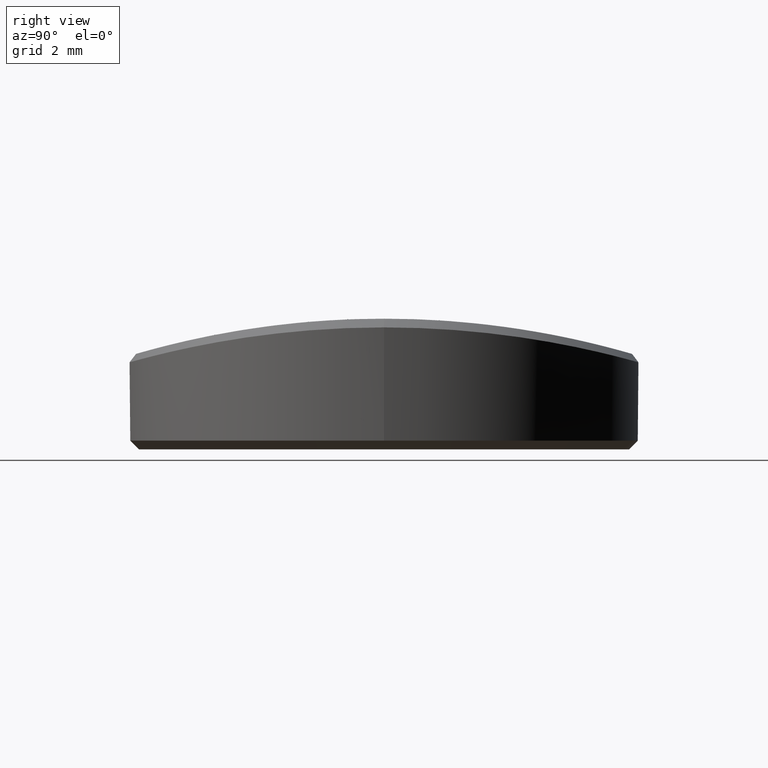
[diagram: clean part render]
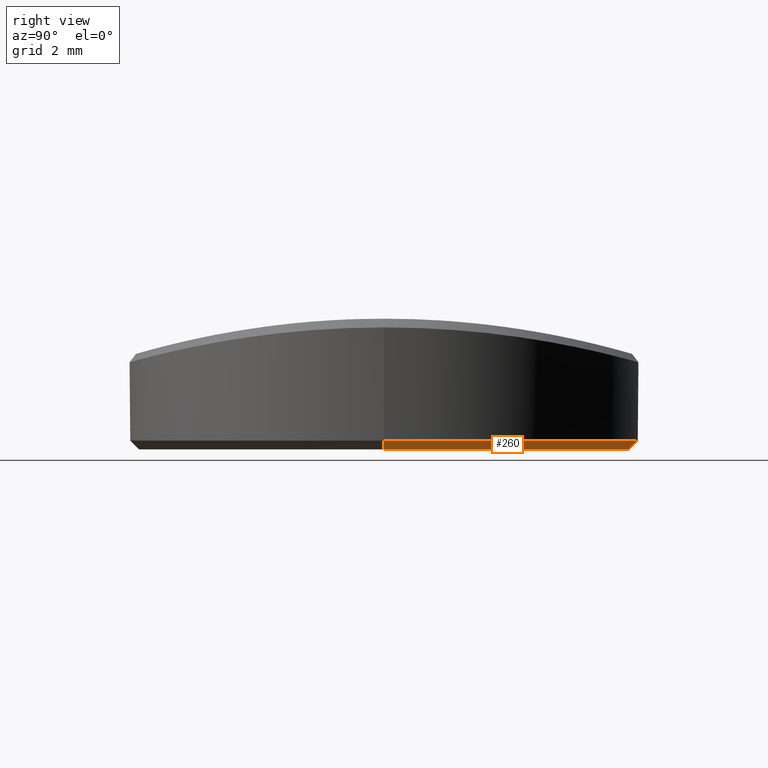
[diagram: same view with one face highlighted and labeled with its STEP entity id]
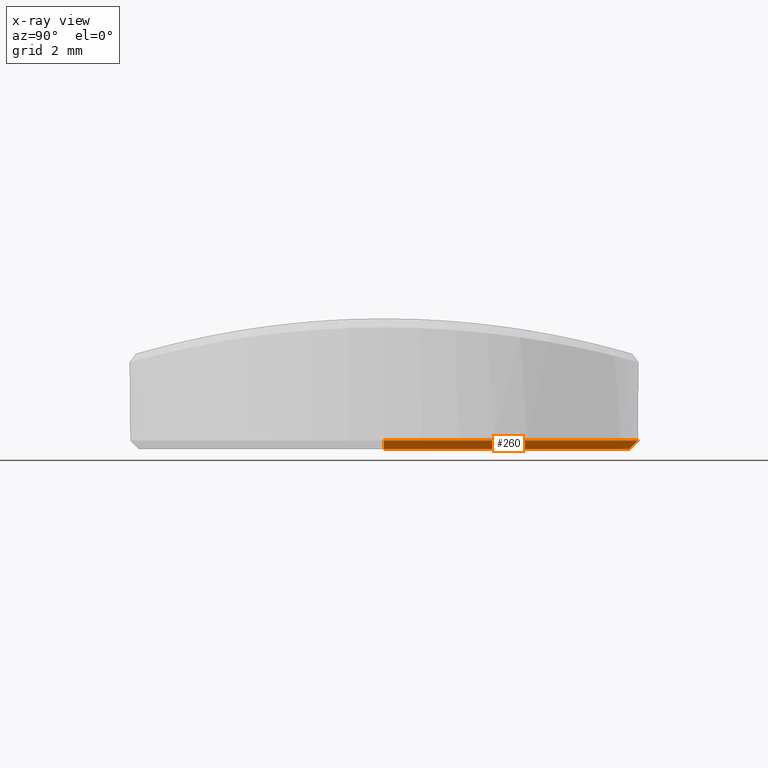
[diagram: x-ray of the same camera — body ghosted, the highlighted face saturated]
A machine part, right view. The second image highlights one B-rep face of the part: STEP entity #260.
The next image is the same camera in x-ray: the body ghosted, the highlighted face saturated — about 0% of this face is hidden behind the body in this view.
In plain terms, the highlighted conical surface has half-angle 45 deg.
Its self-contained STEP definition (entity closure, byte-faithful):
#1 = EDGE_LOOP ( 'NONE', ( #1028, #1593, #925, #1957 ) ) ;
#145 = CONICAL_SURFACE ( 'NONE', #1229, 5.849999999999999645, 0.7853981633974482790 ) ;
#207 = DIRECTION ( 'NONE',  ( 0.7071067811865474617, 0.000000000000000000, 0.7071067811865474617 ) ) ;
#226 = DIRECTION ( 'NONE',  ( -0.000000000000000000, -0.000000000000000000, -1.000000000000000000 ) ) ;
#260 = ADVANCED_FACE ( 'NONE', ( #1337 ), #145, .T. ) ;
#304 = DIRECTION ( 'NONE',  ( -0.000000000000000000, -0.000000000000000000, 1.000000000000000000 ) ) ;
#347 = AXIS2_PLACEMENT_3D ( 'NONE', #466, #1667, #1321 ) ;
#354 = CARTESIAN_POINT ( 'NONE',  ( 5.649999999999997691, 0.000000000000000000, 0.000000000000000000 ) ) ;
#409 = VERTEX_POINT ( 'NONE', #2068 ) ;
#466 = CARTESIAN_POINT ( 'NONE',  ( 0.000000000000000000, 0.000000000000000000, 0.2000000000000013989 ) ) ;
#644 = CARTESIAN_POINT ( 'NONE',  ( 0.000000000000000000, 0.000000000000000000, 0.2000000000000013989 ) ) ;
#894 = CARTESIAN_POINT ( 'NONE',  ( 5.849999999999999645, 0.000000000000000000, 0.2000000000000013989 ) ) ;
#913 = VERTEX_POINT ( 'NONE', #354 ) ;
#925 = ORIENTED_EDGE ( 'NONE', *, *, #2139, .F. ) ;
#963 = EDGE_CURVE ( 'NONE', #1730, #913, #1948, .T. ) ;
#1022 = DIRECTION ( 'NONE',  ( 1.000000000000000000, 0.000000000000000000, 0.000000000000000000 ) ) ;
#1028 = ORIENTED_EDGE ( 'NONE', *, *, #963, .F. ) ;
#1038 = CARTESIAN_POINT ( 'NONE',  ( 0.000000000000000000, 0.000000000000000000, 0.000000000000000000 ) ) ;
#1229 = AXIS2_PLACEMENT_3D ( 'NONE', #644, #304, #1022 ) ;
#1321 = DIRECTION ( 'NONE',  ( 1.000000000000000000, 0.000000000000000000, 0.000000000000000000 ) ) ;
#1329 = CIRCLE ( 'NONE', #347, 5.849999999999999645 ) ;
#1337 = FACE_OUTER_BOUND ( 'NONE', #1, .T. ) ;
#1424 = CARTESIAN_POINT ( 'NONE',  ( -5.649999999999997691, 7.041719095097278907E-16, 0.000000000000000000 ) ) ;
#1470 = EDGE_CURVE ( 'NONE', #1730, #409, #2193, .T. ) ;
#1568 = EDGE_CURVE ( 'NONE', #913, #1902, #1723, .T. ) ;
#1571 = VECTOR ( 'NONE', #1861, 1000.000000000000114 ) ;
#1593 = ORIENTED_EDGE ( 'NONE', *, *, #1470, .T. ) ;
#1667 = DIRECTION ( 'NONE',  ( -0.000000000000000000, -0.000000000000000000, 1.000000000000000000 ) ) ;
#1716 = VECTOR ( 'NONE', #207, 1000.000000000000114 ) ;
#1723 = LINE ( 'NONE', #894, #1716 ) ;
#1730 = VERTEX_POINT ( 'NONE', #1424 ) ;
#1750 = DIRECTION ( 'NONE',  ( 1.000000000000000000, 0.000000000000000000, 0.000000000000000000 ) ) ;
#1861 = DIRECTION ( 'NONE',  ( -0.7071067811865474617, 8.659560562354932858E-17, 0.7071067811865474617 ) ) ;
#1902 = VERTEX_POINT ( 'NONE', #2049 ) ;
#1912 = AXIS2_PLACEMENT_3D ( 'NONE', #1038, #226, #1750 ) ;
#1948 = CIRCLE ( 'NONE', #1912, 5.649999999999997691 ) ;
#1957 = ORIENTED_EDGE ( 'NONE', *, *, #1568, .F. ) ;
#2033 = CARTESIAN_POINT ( 'NONE',  ( -5.849999999999999645, 7.164183775012015436E-16, 0.2000000000000013989 ) ) ;
#2049 = CARTESIAN_POINT ( 'NONE',  ( 5.849999999999999645, 7.164183775012015436E-16, 0.2000000000000013989 ) ) ;
#2068 = CARTESIAN_POINT ( 'NONE',  ( -5.849999999999999645, 0.000000000000000000, 0.2000000000000013989 ) ) ;
#2139 = EDGE_CURVE ( 'NONE', #1902, #409, #1329, .T. ) ;
#2193 = LINE ( 'NONE', #2033, #1571 ) ;